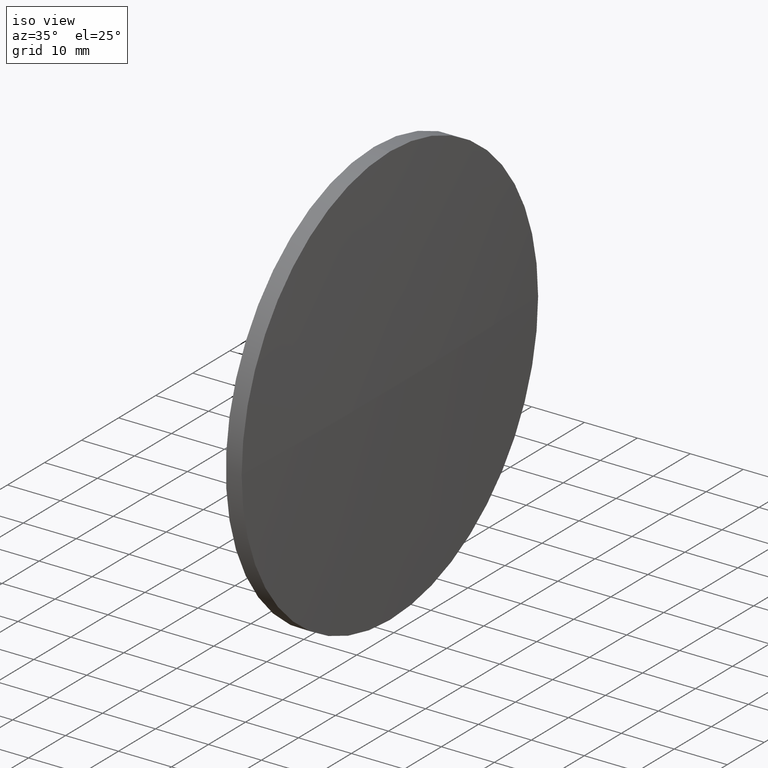
[diagram: clean part render]
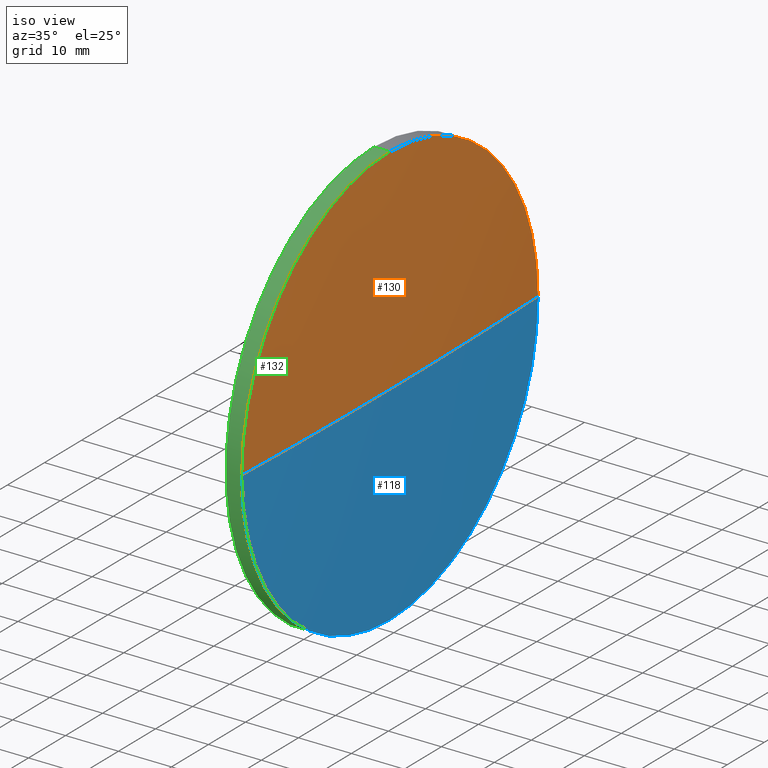
[diagram: same view with three faces highlighted in distinct colors, each labeled with its STEP entity id]
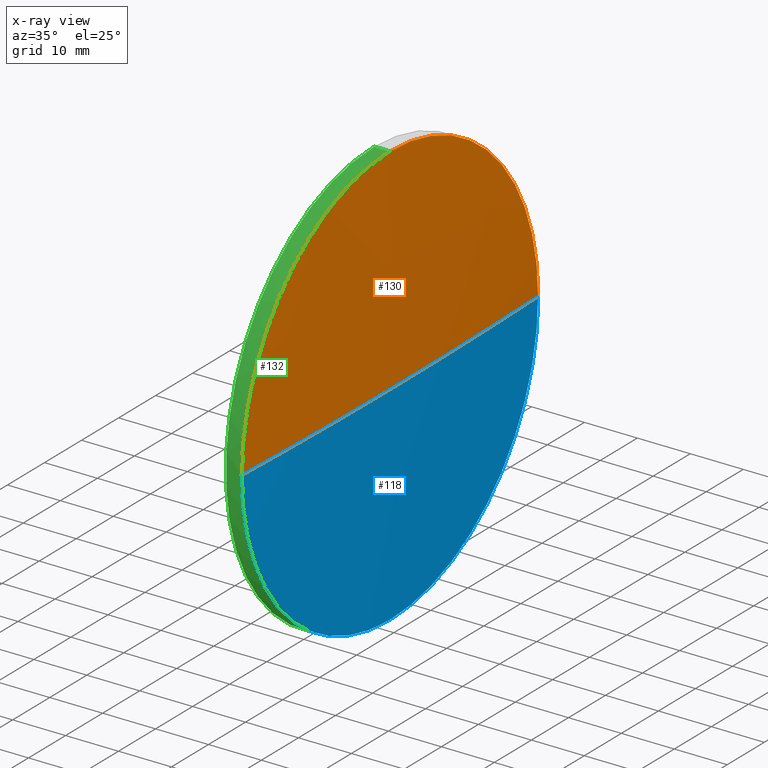
[diagram: x-ray of the same camera — body ghosted, the three highlighted faces saturated]
A machine part, iso view with three faces highlighted in distinct colors.
The next image is the same camera in x-ray (body ghosted, the three faces saturated) — at least one of them is partly hidden behind the body in this view.
Their STEP definitions:

[orange] entity #130 — the highlighted spherical surface has radius 1039.35 mm.
#16 = EDGE_LOOP ( 'NONE', ( #156, #84, #71, #150 ) ) ;
#24 = CARTESIAN_POINT ( 'NONE',  ( 228.9390942240209200, 170.4671098528231400, 0.0000000000000000000 ) ) ;
#28 = CARTESIAN_POINT ( 'NONE',  ( -809.6369447370427700, 130.4671098528240500, 0.0000000000000000000 ) ) ;
#32 = AXIS2_PLACEMENT_3D ( 'NONE', #180, #51, #175 ) ;
#33 = VERTEX_POINT ( 'NONE', #24 ) ;
#38 = CARTESIAN_POINT ( 'NONE',  ( 228.9390942240209200, 130.4671098528244200, 0.0000000000000000000 ) ) ;
#51 = DIRECTION ( 'NONE',  ( -0.0000000000000000000, 0.0000000000000000000, -1.000000000000000000 ) ) ;
#53 = EDGE_CURVE ( 'NONE', #178, #33, #154, .T. ) ;
#54 = CARTESIAN_POINT ( 'NONE',  ( 228.9390942240209200, 130.4671098528244200, 0.0000000000000000000 ) ) ;
#65 = SPHERICAL_SURFACE ( 'NONE', #32, 1039.346038961063600 ) ;
#66 = CARTESIAN_POINT ( 'NONE',  ( -809.6369447370427700, 130.4671098528240500, 0.0000000000000000000 ) ) ;
#70 = DIRECTION ( 'NONE',  ( 0.0000000000000000000, 1.000000000000000000, 1.224646799147353200E-016 ) ) ;
#71 = ORIENTED_EDGE ( 'NONE', *, *, #53, .F. ) ;
#82 = DIRECTION ( 'NONE',  ( 0.0000000000000000000, 0.0000000000000000000, 1.000000000000000000 ) ) ;
#83 = CARTESIAN_POINT ( 'NONE',  ( 229.7090942240208700, 130.4671098528241100, 0.0000000000000000000 ) ) ;
#84 = ORIENTED_EDGE ( 'NONE', *, *, #143, .T. ) ;
#88 = AXIS2_PLACEMENT_3D ( 'NONE', #38, #131, #160 ) ;
#90 = VERTEX_POINT ( 'NONE', #162 ) ;
#95 = AXIS2_PLACEMENT_3D ( 'NONE', #28, #101, #152 ) ;
#100 = VERTEX_POINT ( 'NONE', #83 ) ;
#101 = DIRECTION ( 'NONE',  ( -0.0000000000000000000, 0.0000000000000000000, 1.000000000000000000 ) ) ;
#102 = EDGE_CURVE ( 'NONE', #90, #178, #110, .T. ) ;
#105 = CIRCLE ( 'NONE', #151, 1039.346038961063600 ) ;
#110 = CIRCLE ( 'NONE', #111, 40.00000000000000700 ) ;
#111 = AXIS2_PLACEMENT_3D ( 'NONE', #54, #140, #82 ) ;
#129 = DIRECTION ( 'NONE',  ( 0.0000000000000000000, 1.224646799147353200E-016, -1.000000000000000000 ) ) ;
#130 = ADVANCED_FACE ( 'NONE', ( #137 ), #65, .T. ) ;
#131 = DIRECTION ( 'NONE',  ( -1.000000000000000000, -0.0000000000000000000, -0.0000000000000000000 ) ) ;
#137 = FACE_OUTER_BOUND ( 'NONE', #16, .T. ) ;
#140 = DIRECTION ( 'NONE',  ( -1.000000000000000000, -0.0000000000000000000, -0.0000000000000000000 ) ) ;
#143 = EDGE_CURVE ( 'NONE', #100, #33, #171, .T. ) ;
#150 = ORIENTED_EDGE ( 'NONE', *, *, #102, .F. ) ;
#151 = AXIS2_PLACEMENT_3D ( 'NONE', #66, #129, #70 ) ;
#152 = DIRECTION ( 'NONE',  ( 1.000000000000000000, 0.0000000000000000000, 0.0000000000000000000 ) ) ;
#154 = CIRCLE ( 'NONE', #88, 40.00000000000000700 ) ;
#156 = ORIENTED_EDGE ( 'NONE', *, *, #165, .F. ) ;
#160 = DIRECTION ( 'NONE',  ( 0.0000000000000000000, 0.0000000000000000000, 1.000000000000000000 ) ) ;
#162 = CARTESIAN_POINT ( 'NONE',  ( 228.9390942240209200, 90.46710985282534500, -4.898587196589255300E-015 ) ) ;
#165 = EDGE_CURVE ( 'NONE', #100, #90, #105, .T. ) ;
#171 = CIRCLE ( 'NONE', #95, 1039.346038961063600 ) ;
#175 = DIRECTION ( 'NONE',  ( 0.0000000000000000000, 1.000000000000000000, 0.0000000000000000000 ) ) ;
#178 = VERTEX_POINT ( 'NONE', #181 ) ;
#180 = CARTESIAN_POINT ( 'NONE',  ( -809.6369447370427700, 130.4671098528240500, 0.0000000000000000000 ) ) ;
#181 = CARTESIAN_POINT ( 'NONE',  ( 228.9390942240209200, 130.4671098528244200, 40.00000000000000700 ) ) ;

[blue] entity #118 — the highlighted spherical surface has radius 1039.35 mm.
#2 = ORIENTED_EDGE ( 'NONE', *, *, #165, .T. ) ;
#10 = EDGE_CURVE ( 'NONE', #170, #90, #91, .T. ) ;
#24 = CARTESIAN_POINT ( 'NONE',  ( 228.9390942240209200, 170.4671098528231400, 0.0000000000000000000 ) ) ;
#28 = CARTESIAN_POINT ( 'NONE',  ( -809.6369447370427700, 130.4671098528240500, 0.0000000000000000000 ) ) ;
#33 = VERTEX_POINT ( 'NONE', #24 ) ;
#49 = AXIS2_PLACEMENT_3D ( 'NONE', #112, #128, #57 ) ;
#57 = DIRECTION ( 'NONE',  ( 0.0000000000000000000, 0.0000000000000000000, 1.000000000000000000 ) ) ;
#64 = CIRCLE ( 'NONE', #49, 40.00000000000000700 ) ;
#66 = CARTESIAN_POINT ( 'NONE',  ( -809.6369447370427700, 130.4671098528240500, 0.0000000000000000000 ) ) ;
#68 = DIRECTION ( 'NONE',  ( -0.0000000000000000000, 0.0000000000000000000, -1.000000000000000000 ) ) ;
#70 = DIRECTION ( 'NONE',  ( 0.0000000000000000000, 1.000000000000000000, 1.224646799147353200E-016 ) ) ;
#80 = AXIS2_PLACEMENT_3D ( 'NONE', #99, #172, #149 ) ;
#83 = CARTESIAN_POINT ( 'NONE',  ( 229.7090942240208700, 130.4671098528241100, 0.0000000000000000000 ) ) ;
#85 = CARTESIAN_POINT ( 'NONE',  ( 228.9390942240209200, 130.4671098528244200, -40.00000000000000700 ) ) ;
#90 = VERTEX_POINT ( 'NONE', #162 ) ;
#91 = CIRCLE ( 'NONE', #80, 40.00000000000000700 ) ;
#95 = AXIS2_PLACEMENT_3D ( 'NONE', #28, #101, #152 ) ;
#99 = CARTESIAN_POINT ( 'NONE',  ( 228.9390942240209200, 130.4671098528244200, 0.0000000000000000000 ) ) ;
#100 = VERTEX_POINT ( 'NONE', #83 ) ;
#101 = DIRECTION ( 'NONE',  ( -0.0000000000000000000, 0.0000000000000000000, 1.000000000000000000 ) ) ;
#105 = CIRCLE ( 'NONE', #151, 1039.346038961063600 ) ;
#109 = AXIS2_PLACEMENT_3D ( 'NONE', #113, #68, #117 ) ;
#112 = CARTESIAN_POINT ( 'NONE',  ( 228.9390942240209200, 130.4671098528244200, 0.0000000000000000000 ) ) ;
#113 = CARTESIAN_POINT ( 'NONE',  ( -809.6369447370427700, 130.4671098528240500, 0.0000000000000000000 ) ) ;
#117 = DIRECTION ( 'NONE',  ( 0.0000000000000000000, 1.000000000000000000, 0.0000000000000000000 ) ) ;
#118 = ADVANCED_FACE ( 'NONE', ( #122 ), #141, .T. ) ;
#122 = FACE_OUTER_BOUND ( 'NONE', #173, .T. ) ;
#128 = DIRECTION ( 'NONE',  ( -1.000000000000000000, -0.0000000000000000000, -0.0000000000000000000 ) ) ;
#129 = DIRECTION ( 'NONE',  ( 0.0000000000000000000, 1.224646799147353200E-016, -1.000000000000000000 ) ) ;
#141 = SPHERICAL_SURFACE ( 'NONE', #109, 1039.346038961063600 ) ;
#143 = EDGE_CURVE ( 'NONE', #100, #33, #171, .T. ) ;
#149 = DIRECTION ( 'NONE',  ( 0.0000000000000000000, 0.0000000000000000000, 1.000000000000000000 ) ) ;
#151 = AXIS2_PLACEMENT_3D ( 'NONE', #66, #129, #70 ) ;
#152 = DIRECTION ( 'NONE',  ( 1.000000000000000000, 0.0000000000000000000, 0.0000000000000000000 ) ) ;
#157 = ORIENTED_EDGE ( 'NONE', *, *, #143, .F. ) ;
#162 = CARTESIAN_POINT ( 'NONE',  ( 228.9390942240209200, 90.46710985282534500, -4.898587196589255300E-015 ) ) ;
#163 = ORIENTED_EDGE ( 'NONE', *, *, #184, .F. ) ;
#165 = EDGE_CURVE ( 'NONE', #100, #90, #105, .T. ) ;
#170 = VERTEX_POINT ( 'NONE', #85 ) ;
#171 = CIRCLE ( 'NONE', #95, 1039.346038961063600 ) ;
#172 = DIRECTION ( 'NONE',  ( -1.000000000000000000, -0.0000000000000000000, -0.0000000000000000000 ) ) ;
#173 = EDGE_LOOP ( 'NONE', ( #157, #2, #185, #163 ) ) ;
#184 = EDGE_CURVE ( 'NONE', #33, #170, #64, .T. ) ;
#185 = ORIENTED_EDGE ( 'NONE', *, *, #10, .F. ) ;

[green] entity #132 — the highlighted cylindrical surface (partial cylindrical patch) has radius 40 mm, axis along (-1, -0, -0).
#10 = EDGE_CURVE ( 'NONE', #170, #90, #91, .T. ) ;
#12 = CARTESIAN_POINT ( 'NONE',  ( 217.9945825323866300, 130.4671098528244200, 40.00000000000000700 ) ) ;
#13 = DIRECTION ( 'NONE',  ( -1.000000000000000000, -0.0000000000000000000, -0.0000000000000000000 ) ) ;
#20 = FACE_OUTER_BOUND ( 'NONE', #76, .T. ) ;
#30 = ORIENTED_EDGE ( 'NONE', *, *, #116, .T. ) ;
#34 = CIRCLE ( 'NONE', #60, 40.00000000000000700 ) ;
#39 = CARTESIAN_POINT ( 'NONE',  ( 225.9490942240209100, 130.4671098528244200, -40.00000000000000700 ) ) ;
#40 = EDGE_CURVE ( 'NONE', #170, #78, #134, .T. ) ;
#41 = ORIENTED_EDGE ( 'NONE', *, *, #40, .F. ) ;
#47 = DIRECTION ( 'NONE',  ( -1.000000000000000000, -0.0000000000000000000, -0.0000000000000000000 ) ) ;
#50 = CARTESIAN_POINT ( 'NONE',  ( 225.9490942240209100, 130.4671098528244200, 0.0000000000000000000 ) ) ;
#52 = DIRECTION ( 'NONE',  ( 0.0000000000000000000, 0.0000000000000000000, 1.000000000000000000 ) ) ;
#54 = CARTESIAN_POINT ( 'NONE',  ( 228.9390942240209200, 130.4671098528244200, 0.0000000000000000000 ) ) ;
#60 = AXIS2_PLACEMENT_3D ( 'NONE', #50, #164, #52 ) ;
#63 = ORIENTED_EDGE ( 'NONE', *, *, #10, .T. ) ;
#69 = CARTESIAN_POINT ( 'NONE',  ( 225.9490942240209100, 130.4671098528244200, 40.00000000000000700 ) ) ;
#74 = ORIENTED_EDGE ( 'NONE', *, *, #93, .F. ) ;
#76 = EDGE_LOOP ( 'NONE', ( #41, #63, #136, #30, #74 ) ) ;
#78 = VERTEX_POINT ( 'NONE', #39 ) ;
#79 = LINE ( 'NONE', #12, #146 ) ;
#80 = AXIS2_PLACEMENT_3D ( 'NONE', #99, #172, #149 ) ;
#82 = DIRECTION ( 'NONE',  ( 0.0000000000000000000, 0.0000000000000000000, 1.000000000000000000 ) ) ;
#85 = CARTESIAN_POINT ( 'NONE',  ( 228.9390942240209200, 130.4671098528244200, -40.00000000000000700 ) ) ;
#90 = VERTEX_POINT ( 'NONE', #162 ) ;
#91 = CIRCLE ( 'NONE', #80, 40.00000000000000700 ) ;
#93 = EDGE_CURVE ( 'NONE', #78, #186, #34, .T. ) ;
#99 = CARTESIAN_POINT ( 'NONE',  ( 228.9390942240209200, 130.4671098528244200, 0.0000000000000000000 ) ) ;
#102 = EDGE_CURVE ( 'NONE', #90, #178, #110, .T. ) ;
#103 = CARTESIAN_POINT ( 'NONE',  ( 217.9945825323866300, 130.4671098528244200, 0.0000000000000000000 ) ) ;
#110 = CIRCLE ( 'NONE', #111, 40.00000000000000700 ) ;
#111 = AXIS2_PLACEMENT_3D ( 'NONE', #54, #140, #82 ) ;
#115 = DIRECTION ( 'NONE',  ( 0.0000000000000000000, 0.0000000000000000000, 1.000000000000000000 ) ) ;
#116 = EDGE_CURVE ( 'NONE', #178, #186, #79, .T. ) ;
#120 = AXIS2_PLACEMENT_3D ( 'NONE', #103, #13, #115 ) ;
#126 = CARTESIAN_POINT ( 'NONE',  ( 217.9945825323866300, 130.4671098528244200, -40.00000000000000700 ) ) ;
#132 = ADVANCED_FACE ( 'NONE', ( #20 ), #158, .T. ) ;
#134 = LINE ( 'NONE', #126, #148 ) ;
#136 = ORIENTED_EDGE ( 'NONE', *, *, #102, .T. ) ;
#140 = DIRECTION ( 'NONE',  ( -1.000000000000000000, -0.0000000000000000000, -0.0000000000000000000 ) ) ;
#146 = VECTOR ( 'NONE', #161, 1000.000000000000000 ) ;
#148 = VECTOR ( 'NONE', #47, 1000.000000000000000 ) ;
#149 = DIRECTION ( 'NONE',  ( 0.0000000000000000000, 0.0000000000000000000, 1.000000000000000000 ) ) ;
#158 = CYLINDRICAL_SURFACE ( 'NONE', #120, 40.00000000000000700 ) ;
#161 = DIRECTION ( 'NONE',  ( -1.000000000000000000, -0.0000000000000000000, -0.0000000000000000000 ) ) ;
#162 = CARTESIAN_POINT ( 'NONE',  ( 228.9390942240209200, 90.46710985282534500, -4.898587196589255300E-015 ) ) ;
#164 = DIRECTION ( 'NONE',  ( -1.000000000000000000, -0.0000000000000000000, -0.0000000000000000000 ) ) ;
#170 = VERTEX_POINT ( 'NONE', #85 ) ;
#172 = DIRECTION ( 'NONE',  ( -1.000000000000000000, -0.0000000000000000000, -0.0000000000000000000 ) ) ;
#178 = VERTEX_POINT ( 'NONE', #181 ) ;
#181 = CARTESIAN_POINT ( 'NONE',  ( 228.9390942240209200, 130.4671098528244200, 40.00000000000000700 ) ) ;
#186 = VERTEX_POINT ( 'NONE', #69 ) ;